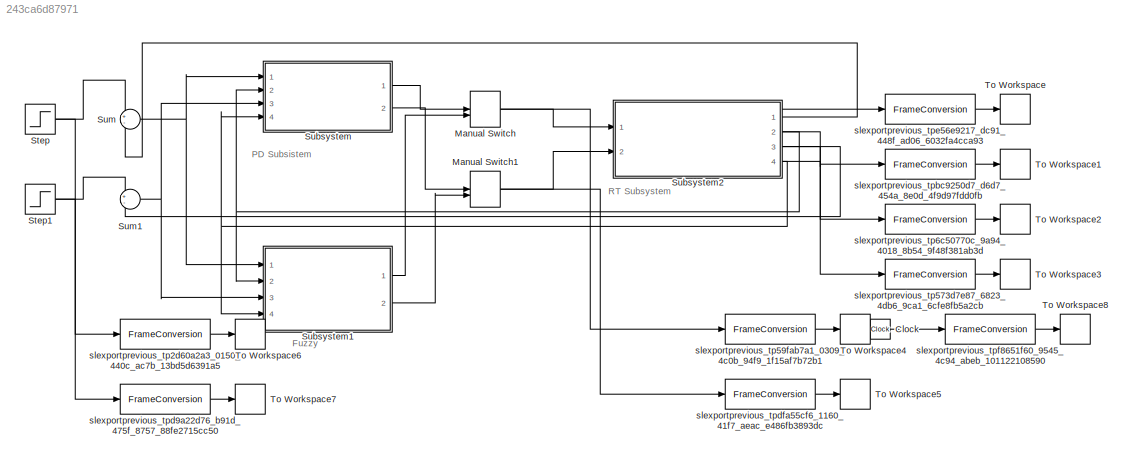
MODEL slx_243ca6d87971
KIND model
BLOCK [Clock] Clock
BLOCK [ManualSwitch] Manual Switch
BLOCK [ManualSwitch] Manual Switch1
BLOCK [Step] Step
  SampleTime = 0
  Time = 0
BLOCK [Step] Step1
  SampleTime = 0
  Time = 0
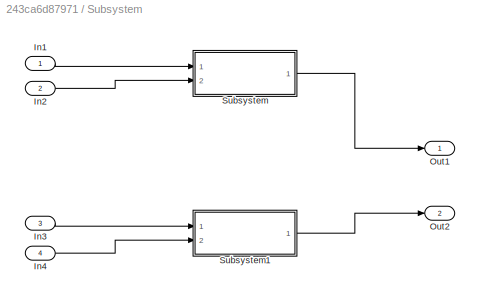
BLOCK [SubSystem] Subsystem
  FunctionWithSeparateData = off
  MaskHideContents = off
  MinAlgLoopOccurrences = off
  Opaque = off
  Ports = [4, 2]
  PropExecContextOutsideSubsystem = off
  RTWSystemCode = Auto
  RequestExecContextInheritance = off
BLOCK [Inport] Subsystem/In1
BLOCK [Inport] Subsystem/In2
  Port = 2
BLOCK [Inport] Subsystem/In3
  Port = 3
BLOCK [Inport] Subsystem/In4
  Port = 4
BLOCK [Outport] Subsystem/Out1
BLOCK [Outport] Subsystem/Out2
  Port = 2
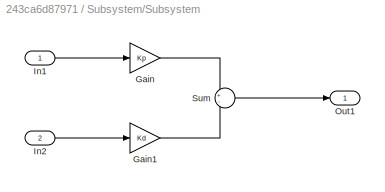
BLOCK [SubSystem] Subsystem/Subsystem
  FunctionWithSeparateData = off
  MaskHideContents = off
  MinAlgLoopOccurrences = off
  Opaque = off
  Ports = [2, 1]
  PropExecContextOutsideSubsystem = off
  RTWSystemCode = Auto
  RequestExecContextInheritance = off
BLOCK [Gain] Subsystem/Subsystem/Gain
  Gain = Kp
BLOCK [Gain] Subsystem/Subsystem/Gain1
  Gain = Kd
BLOCK [Inport] Subsystem/Subsystem/In1
BLOCK [Inport] Subsystem/Subsystem/In2
  Port = 2
BLOCK [Outport] Subsystem/Subsystem/Out1
BLOCK [Sum] Subsystem/Subsystem/Sum
  Inputs = +-
  Ports = [2, 1]
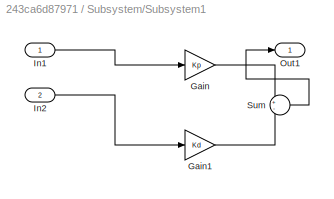
BLOCK [SubSystem] Subsystem/Subsystem1
  FunctionWithSeparateData = off
  MaskHideContents = off
  MinAlgLoopOccurrences = off
  Opaque = off
  Ports = [2, 1]
  PropExecContextOutsideSubsystem = off
  RTWSystemCode = Auto
  RequestExecContextInheritance = off
BLOCK [Gain] Subsystem/Subsystem1/Gain
  Gain = Kp
BLOCK [Gain] Subsystem/Subsystem1/Gain1
  Gain = Kd
BLOCK [Inport] Subsystem/Subsystem1/In1
BLOCK [Inport] Subsystem/Subsystem1/In2
  Port = 2
BLOCK [Outport] Subsystem/Subsystem1/Out1
BLOCK [Sum] Subsystem/Subsystem1/Sum
  Inputs = +-
  Ports = [2, 1]
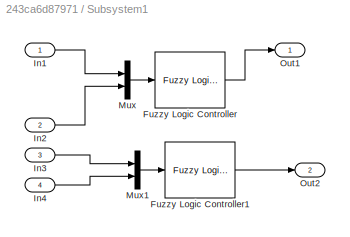
BLOCK [SubSystem] Subsystem1
  FunctionWithSeparateData = off
  MaskHideContents = off
  MinAlgLoopOccurrences = off
  Opaque = off
  Ports = [4, 2]
  PropExecContextOutsideSubsystem = off
  RTWSystemCode = Auto
  RequestExecContextInheritance = off
BLOCK [Reference] Subsystem1/Fuzzy Logic Controller  REF=fuzblock/Fuzzy Logic   (lib defined in mdl_858b3b3e7478)
Controller
  FIS = rtfuzzy
  Ports = [1, 1]
  RTWMemSecDataConstants = Inherit from model
  RTWMemSecDataInternal = Inherit from model
  RTWMemSecDataParameters = Inherit from model
  RTWMemSecFuncExecute = Inherit from model
  RTWMemSecFuncInitTerm = Inherit from model
  SourceBlock = fuzblock/Fuzzy Logic \nController
  SourceType = Fuzzy Inference System
BLOCK [Reference] Subsystem1/Fuzzy Logic Controller1  REF=fuzblock/Fuzzy Logic   (lib defined in mdl_858b3b3e7478)
Controller
  FIS = rtfuzzy
  Ports = [1, 1]
  RTWMemSecDataConstants = Inherit from model
  RTWMemSecDataInternal = Inherit from model
  RTWMemSecDataParameters = Inherit from model
  RTWMemSecFuncExecute = Inherit from model
  RTWMemSecFuncInitTerm = Inherit from model
  SourceBlock = fuzblock/Fuzzy Logic \nController
  SourceType = Fuzzy Inference System
BLOCK [Inport] Subsystem1/In1
BLOCK [Inport] Subsystem1/In2
  Port = 2
BLOCK [Inport] Subsystem1/In3
  Port = 3
BLOCK [Inport] Subsystem1/In4
  Port = 4
BLOCK [Mux] Subsystem1/Mux
  DisplayOption = bar
  Inputs = 2
  Ports = [2, 1]
BLOCK [Mux] Subsystem1/Mux1
  DisplayOption = bar
  Inputs = 2
  Ports = [2, 1]
BLOCK [Outport] Subsystem1/Out1
BLOCK [Outport] Subsystem1/Out2
  Port = 2
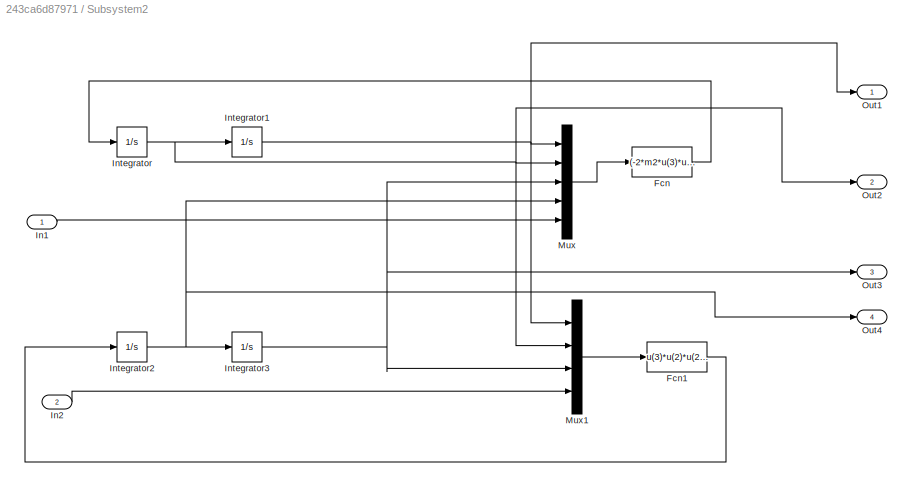
BLOCK [SubSystem] Subsystem2
  FunctionWithSeparateData = off
  MaskHideContents = off
  MinAlgLoopOccurrences = off
  Opaque = off
  Ports = [2, 4]
  PropExecContextOutsideSubsystem = off
  RTWSystemCode = Auto
  RequestExecContextInheritance = off
BLOCK [Fcn] Subsystem2/Fcn
  Expr = (-2*m2*u(3)*u(2)*u(4)-m1*lc1*g*cos(u(1))-m2*g*u(3)*cos(u(1))+u(5))/(m0+m2*u(3)*u(3))
BLOCK [Fcn] Subsystem2/Fcn1
  Expr = u(3)*u(2)*u(2)-g*sin(u(1))+u(4)/m2
BLOCK [Inport] Subsystem2/In1
BLOCK [Inport] Subsystem2/In2
  Port = 2
BLOCK [Integrator] Subsystem2/Integrator
  Ports = [1, 1]
BLOCK [Integrator] Subsystem2/Integrator1
  Ports = [1, 1]
BLOCK [Integrator] Subsystem2/Integrator2
  Ports = [1, 1]
BLOCK [Integrator] Subsystem2/Integrator3
  Ports = [1, 1]
BLOCK [Mux] Subsystem2/Mux
  DisplayOption = bar
  Inputs = 5
  Ports = [5, 1]
BLOCK [Mux] Subsystem2/Mux1
  DisplayOption = bar
  Ports = [4, 1]
BLOCK [Outport] Subsystem2/Out1
BLOCK [Outport] Subsystem2/Out2
  Port = 2
BLOCK [Outport] Subsystem2/Out3
  Port = 3
BLOCK [Outport] Subsystem2/Out4
  Port = 4
BLOCK [Sum] Sum
  Inputs = +-
  Ports = [2, 1]
BLOCK [Sum] Sum1
  Inputs = +-
  Ports = [2, 1]
BLOCK [ToWorkspace] To Workspace
  FixptAsFi = on
  MaxDataPoints = inf
  Ports = [1]
  SampleTime = -1
  VariableName = q1
BLOCK [ToWorkspace] To Workspace1
  FixptAsFi = on
  MaxDataPoints = inf
  Ports = [1]
  SampleTime = -1
  VariableName = dq1
BLOCK [ToWorkspace] To Workspace2
  FixptAsFi = on
  MaxDataPoints = inf
  Ports = [1]
  SampleTime = -1
  VariableName = q2
BLOCK [ToWorkspace] To Workspace3
  FixptAsFi = on
  MaxDataPoints = inf
  Ports = [1]
  SampleTime = -1
  VariableName = dq2
BLOCK [ToWorkspace] To Workspace4
  FixptAsFi = on
  MaxDataPoints = inf
  Ports = [1]
  SampleTime = -1
  VariableName = U1
BLOCK [ToWorkspace] To Workspace5
  FixptAsFi = on
  MaxDataPoints = inf
  Ports = [1]
  SampleTime = -1
  VariableName = U2
BLOCK [ToWorkspace] To Workspace6
  FixptAsFi = on
  MaxDataPoints = inf
  Ports = [1]
  SampleTime = -1
  VariableName = qr1
BLOCK [ToWorkspace] To Workspace7
  FixptAsFi = on
  MaxDataPoints = inf
  Ports = [1]
  SampleTime = -1
  VariableName = qr2
BLOCK [ToWorkspace] To Workspace8
  FixptAsFi = on
  MaxDataPoints = inf
  Ports = [1]
  SampleTime = -1
  VariableName = Tout
BLOCK [FrameConversion] slexportprevious_tp2d60a2a3_0150_440c_ac7b_13bd5d6391a5
  OutFrame = Sample-based
  Ports = [1, 1]
BLOCK [FrameConversion] slexportprevious_tp573d7e87_6823_4db6_9ca1_6cfe8fb5a2cb
  OutFrame = Sample-based
  Ports = [1, 1]
BLOCK [FrameConversion] slexportprevious_tp59fab7a1_0309_4c0b_94f9_1f15af7b72b1
  OutFrame = Sample-based
  Ports = [1, 1]
BLOCK [FrameConversion] slexportprevious_tp6c50770c_9a94_4018_8b54_9f48f381ab3d
  OutFrame = Sample-based
  Ports = [1, 1]
BLOCK [FrameConversion] slexportprevious_tpbc9250d7_d6d7_454a_8e0d_4f9d97fdd0fb
  OutFrame = Sample-based
  Ports = [1, 1]
BLOCK [FrameConversion] slexportprevious_tpd9a22d76_b91d_475f_8757_88fe2715cc50
  OutFrame = Sample-based
  Ports = [1, 1]
BLOCK [FrameConversion] slexportprevious_tpdfa55cf6_1160_41f7_aeac_e486fb3893dc
  OutFrame = Sample-based
  Ports = [1, 1]
BLOCK [FrameConversion] slexportprevious_tpe56e9217_dc91_448f_ad06_6032fa4cca93
  OutFrame = Sample-based
  Ports = [1, 1]
BLOCK [FrameConversion] slexportprevious_tpf8651f60_9545_4c94_abeb_101122108590
  OutFrame = Sample-based
  Ports = [1, 1]
ANNOTATION (root): Fuzzy
ANNOTATION (root): PD Subsistem
ANNOTATION (root): RT Subsystem
LINE Clock:1 -> slexportprevious_tpf8651f60_9545_4c94_abeb_101122108590:1
NET Manual Switch1:1 -> Subsystem2:2, slexportprevious_tpdfa55cf6_1160_41f7_aeac_e486fb3893dc:1
NET Manual Switch:1 -> Subsystem2:1, slexportprevious_tp59fab7a1_0309_4c0b_94f9_1f15af7b72b1:1
NET Step1:1 -> Sum1:1, slexportprevious_tpd9a22d76_b91d_475f_8757_88fe2715cc50:1
NET Step:1 -> Sum:1, slexportprevious_tp2d60a2a3_0150_440c_ac7b_13bd5d6391a5:1
LINE Subsystem/In1:1 -> Subsystem/Subsystem:1
LINE Subsystem/In2:1 -> Subsystem/Subsystem:2
LINE Subsystem/In3:1 -> Subsystem/Subsystem1:1
LINE Subsystem/In4:1 -> Subsystem/Subsystem1:2
LINE Subsystem/Subsystem/Gain1:1 -> Subsystem/Subsystem/Sum:2
LINE Subsystem/Subsystem/Gain:1 -> Subsystem/Subsystem/Sum:1
LINE Subsystem/Subsystem/In1:1 -> Subsystem/Subsystem/Gain:1
LINE Subsystem/Subsystem/In2:1 -> Subsystem/Subsystem/Gain1:1
LINE Subsystem/Subsystem/Sum:1 -> Subsystem/Subsystem/Out1:1
LINE Subsystem/Subsystem1/Gain1:1 -> Subsystem/Subsystem1/Sum:2
LINE Subsystem/Subsystem1/Gain:1 -> Subsystem/Subsystem1/Sum:1
LINE Subsystem/Subsystem1/In1:1 -> Subsystem/Subsystem1/Gain:1
LINE Subsystem/Subsystem1/In2:1 -> Subsystem/Subsystem1/Gain1:1
LINE Subsystem/Subsystem1/Sum:1 -> Subsystem/Subsystem1/Out1:1
LINE Subsystem/Subsystem1:1 -> Subsystem/Out2:1
LINE Subsystem/Subsystem:1 -> Subsystem/Out1:1
LINE Subsystem1/Fuzzy Logic Controller1:1 -> Subsystem1/Out2:1
LINE Subsystem1/Fuzzy Logic Controller:1 -> Subsystem1/Out1:1
LINE Subsystem1/In1:1 -> Subsystem1/Mux:1
LINE Subsystem1/In2:1 -> Subsystem1/Mux:2
LINE Subsystem1/In3:1 -> Subsystem1/Mux1:1
LINE Subsystem1/In4:1 -> Subsystem1/Mux1:2
LINE Subsystem1/Mux1:1 -> Subsystem1/Fuzzy Logic Controller1:1
LINE Subsystem1/Mux:1 -> Subsystem1/Fuzzy Logic Controller:1
LINE Subsystem1:1 -> Manual Switch:2
LINE Subsystem1:2 -> Manual Switch1:2
LINE Subsystem2/Fcn1:1 -> Subsystem2/Integrator2:1
LINE Subsystem2/Fcn:1 -> Subsystem2/Integrator:1
LINE Subsystem2/In1:1 -> Subsystem2/Mux:5
LINE Subsystem2/In2:1 -> Subsystem2/Mux1:4
NET Subsystem2/Integrator1:1 -> Subsystem2/Mux1:1, Subsystem2/Mux:1, Subsystem2/Out1:1
NET Subsystem2/Integrator2:1 -> Subsystem2/Integrator3:1, Subsystem2/Mux:4, Subsystem2/Out4:1
NET Subsystem2/Integrator3:1 -> Subsystem2/Mux1:3, Subsystem2/Mux:3, Subsystem2/Out3:1
NET Subsystem2/Integrator:1 -> Subsystem2/Integrator1:1, Subsystem2/Mux1:2, Subsystem2/Mux:2, Subsystem2/Out2:1
LINE Subsystem2/Mux1:1 -> Subsystem2/Fcn1:1
LINE Subsystem2/Mux:1 -> Subsystem2/Fcn:1
NET Subsystem2:1 -> Sum:2, slexportprevious_tpe56e9217_dc91_448f_ad06_6032fa4cca93:1
NET Subsystem2:2 -> Subsystem1:2, Subsystem:2, slexportprevious_tpbc9250d7_d6d7_454a_8e0d_4f9d97fdd0fb:1
NET Subsystem2:3 -> Sum1:2, slexportprevious_tp6c50770c_9a94_4018_8b54_9f48f381ab3d:1
NET Subsystem2:4 -> Subsystem1:4, Subsystem:4, slexportprevious_tp573d7e87_6823_4db6_9ca1_6cfe8fb5a2cb:1
LINE Subsystem:1 -> Manual Switch:1
LINE Subsystem:2 -> Manual Switch1:1
NET Sum1:1 -> Subsystem1:3, Subsystem:3
NET Sum:1 -> Subsystem1:1, Subsystem:1
LINE slexportprevious_tp2d60a2a3_0150_440c_ac7b_13bd5d6391a5:1 -> To Workspace6:1
LINE slexportprevious_tp573d7e87_6823_4db6_9ca1_6cfe8fb5a2cb:1 -> To Workspace3:1
LINE slexportprevious_tp59fab7a1_0309_4c0b_94f9_1f15af7b72b1:1 -> To Workspace4:1
LINE slexportprevious_tp6c50770c_9a94_4018_8b54_9f48f381ab3d:1 -> To Workspace2:1
LINE slexportprevious_tpbc9250d7_d6d7_454a_8e0d_4f9d97fdd0fb:1 -> To Workspace1:1
LINE slexportprevious_tpd9a22d76_b91d_475f_8757_88fe2715cc50:1 -> To Workspace7:1
LINE slexportprevious_tpdfa55cf6_1160_41f7_aeac_e486fb3893dc:1 -> To Workspace5:1
LINE slexportprevious_tpe56e9217_dc91_448f_ad06_6032fa4cca93:1 -> To Workspace:1
LINE slexportprevious_tpf8651f60_9545_4c94_abeb_101122108590:1 -> To Workspace8:1
note: NET lines group one-source signal fan-out (src -> all destinations, sorted); 1:1 wires keep LINE
